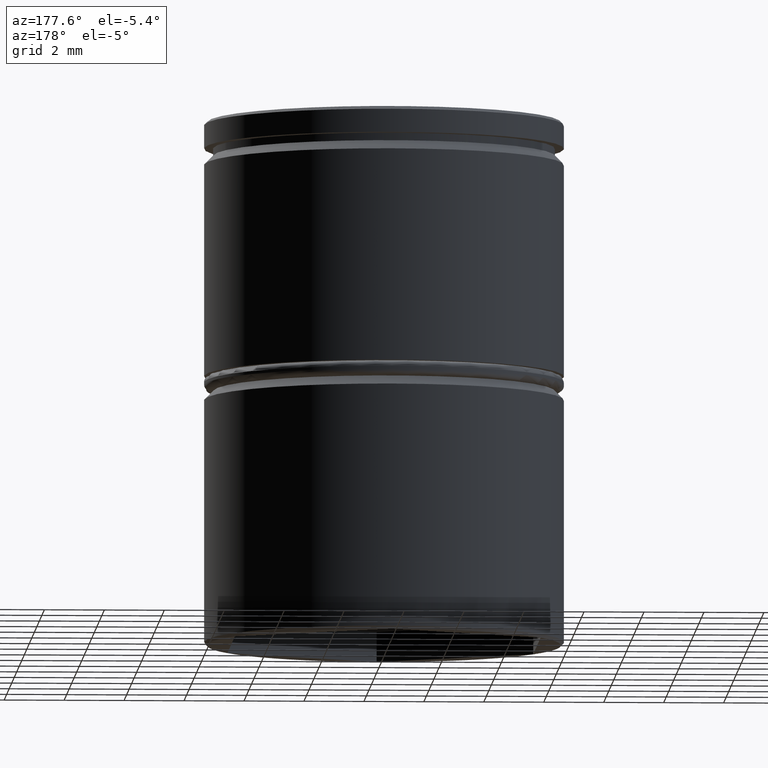
[diagram: clean part render]
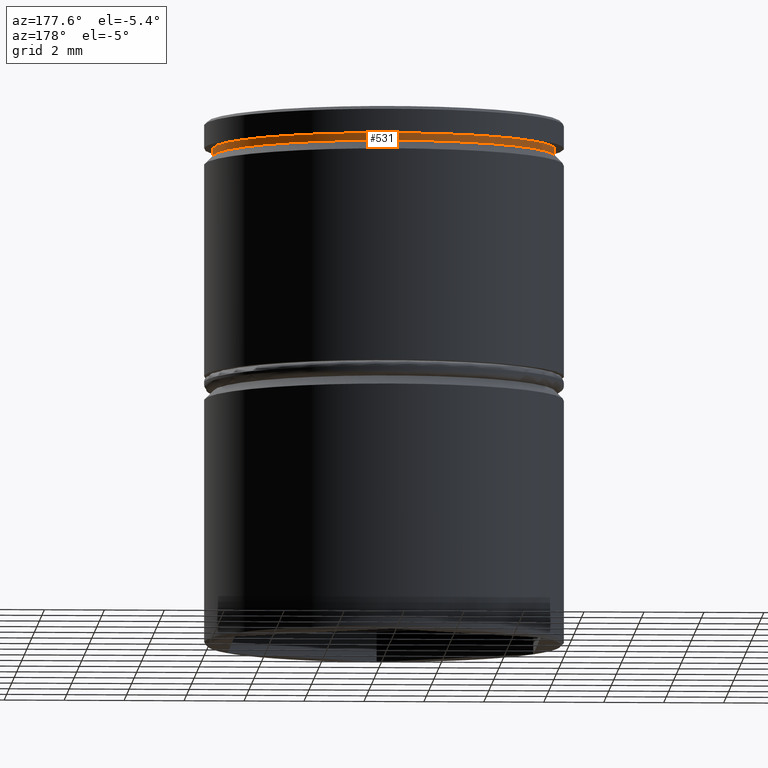
[diagram: same view with one face highlighted and labeled with its STEP entity id]
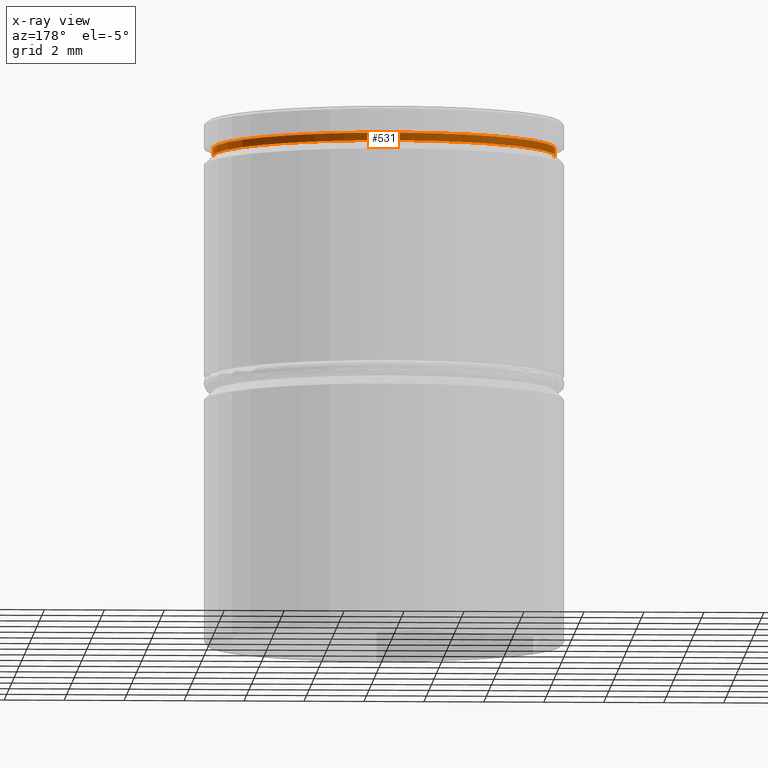
[diagram: x-ray of the same camera — body ghosted, the highlighted face saturated]
A machine part, auxiliary view. The second image highlights one B-rep face of the part: STEP entity #531.
The next image is the same camera in x-ray: the body ghosted, the highlighted face saturated — about 0% of this face is hidden behind the body in this view.
In plain terms, the highlighted cylindrical surface (partial cylindrical patch) has radius 5.7 mm, axis along (-0, -0, 1).
Its self-contained STEP definition (entity closure, byte-faithful):
#12 = DIRECTION ( 'NONE',  ( 1.000000000000000000, 0.000000000000000000, 0.000000000000000000 ) ) ;
#61 = AXIS2_PLACEMENT_3D ( 'NONE', #748, #280, #438 ) ;
#66 = CARTESIAN_POINT ( 'NONE',  ( -5.700000000000000178, 6.980486755139913108E-16, -0.8749999999999998890 ) ) ;
#96 = CYLINDRICAL_SURFACE ( 'NONE', #505, 5.700000000000000178 ) ;
#100 = VERTEX_POINT ( 'NONE', #140 ) ;
#102 = FACE_OUTER_BOUND ( 'NONE', #143, .T. ) ;
#120 = CARTESIAN_POINT ( 'NONE',  ( -5.700000000000000178, 6.980486755139913108E-16, -1.125000000000000222 ) ) ;
#123 = ORIENTED_EDGE ( 'NONE', *, *, #239, .F. ) ;
#140 = CARTESIAN_POINT ( 'NONE',  ( 5.700000000000000178, 0.000000000000000000, -1.125000000000000222 ) ) ;
#143 = EDGE_LOOP ( 'NONE', ( #543, #840, #123, #411 ) ) ;
#159 = CIRCLE ( 'NONE', #1022, 5.700000000000000178 ) ;
#186 = LINE ( 'NONE', #796, #229 ) ;
#229 = VECTOR ( 'NONE', #331, 1000.000000000000000 ) ;
#232 = DIRECTION ( 'NONE',  ( -0.000000000000000000, -0.000000000000000000, 1.000000000000000000 ) ) ;
#239 = EDGE_CURVE ( 'NONE', #834, #687, #159, .T. ) ;
#280 = DIRECTION ( 'NONE',  ( -0.000000000000000000, -0.000000000000000000, 1.000000000000000000 ) ) ;
#331 = DIRECTION ( 'NONE',  ( -0.000000000000000000, -0.000000000000000000, 1.000000000000000000 ) ) ;
#411 = ORIENTED_EDGE ( 'NONE', *, *, #997, .F. ) ;
#414 = DIRECTION ( 'NONE',  ( -0.000000000000000000, -0.000000000000000000, 1.000000000000000000 ) ) ;
#432 = CARTESIAN_POINT ( 'NONE',  ( 5.700000000000000178, 0.000000000000000000, 0.000000000000000000 ) ) ;
#438 = DIRECTION ( 'NONE',  ( 1.000000000000000000, 0.000000000000000000, 0.000000000000000000 ) ) ;
#454 = VERTEX_POINT ( 'NONE', #120 ) ;
#462 = CARTESIAN_POINT ( 'NONE',  ( 0.000000000000000000, 0.000000000000000000, -0.8749999999999998890 ) ) ;
#505 = AXIS2_PLACEMENT_3D ( 'NONE', #729, #414, #12 ) ;
#531 = ADVANCED_FACE ( 'NONE', ( #102 ), #96, .T. ) ;
#543 = ORIENTED_EDGE ( 'NONE', *, *, #605, .T. ) ;
#605 = EDGE_CURVE ( 'NONE', #100, #454, #1001, .T. ) ;
#656 = VECTOR ( 'NONE', #973, 1000.000000000000000 ) ;
#687 = VERTEX_POINT ( 'NONE', #66 ) ;
#729 = CARTESIAN_POINT ( 'NONE',  ( 0.000000000000000000, 0.000000000000000000, 0.000000000000000000 ) ) ;
#748 = CARTESIAN_POINT ( 'NONE',  ( 0.000000000000000000, 0.000000000000000000, -1.125000000000000222 ) ) ;
#777 = DIRECTION ( 'NONE',  ( 1.000000000000000000, 0.000000000000000000, 0.000000000000000000 ) ) ;
#796 = CARTESIAN_POINT ( 'NONE',  ( -5.700000000000000178, 6.980486755139913108E-16, 0.000000000000000000 ) ) ;
#805 = CARTESIAN_POINT ( 'NONE',  ( 5.700000000000000178, 0.000000000000000000, -0.8749999999999998890 ) ) ;
#816 = EDGE_CURVE ( 'NONE', #454, #687, #186, .T. ) ;
#834 = VERTEX_POINT ( 'NONE', #805 ) ;
#840 = ORIENTED_EDGE ( 'NONE', *, *, #816, .T. ) ;
#893 = LINE ( 'NONE', #432, #656 ) ;
#973 = DIRECTION ( 'NONE',  ( -0.000000000000000000, -0.000000000000000000, 1.000000000000000000 ) ) ;
#997 = EDGE_CURVE ( 'NONE', #100, #834, #893, .T. ) ;
#1001 = CIRCLE ( 'NONE', #61, 5.700000000000000178 ) ;
#1022 = AXIS2_PLACEMENT_3D ( 'NONE', #462, #232, #777 ) ;